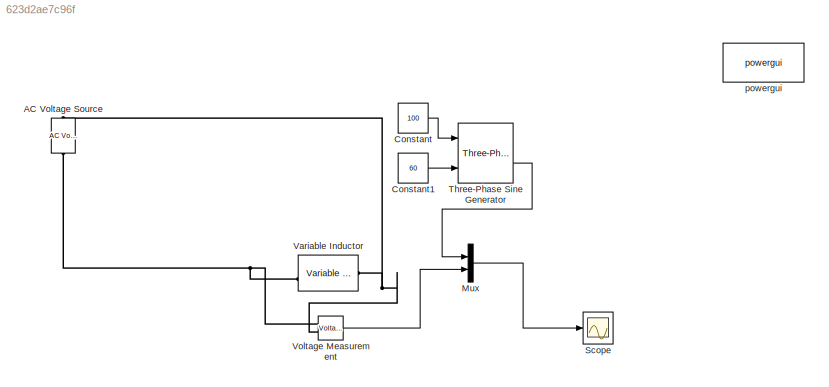
MODEL slx_623d2ae7c96f
KIND model
CONFIG AbsTol = auto
CONFIG EnableMultiTasking = off
CONFIG FixedStep = auto
CONFIG MaxStep = auto
CONFIG MinStep = auto
CONFIG RelTol = 1e-3
CONFIG SampleTimeConstraint = Unconstrained
CONFIG SolverName = VariableStepAuto
CONFIG StartTime = 0.0
CONFIG StopTime = 10.0
BLOCK [Reference] AC Voltage Source  REF=spsACVoltageSourceLib/AC Voltage Source
  Ports = [0, 0, 0, 0, 0, 1, 1]
  SourceBlock = spsACVoltageSourceLib/AC Voltage Source
  SourceProductBaseCode = PS
  SourceType = AC Voltage Source
BLOCK [Constant] Constant
  Value = 100
BLOCK [Constant] Constant1
  Value = 60
BLOCK [Mux] Mux
  DisplayOption = bar
  Inputs = 2
  Ports = [2, 1]
BLOCK [Scope] Scope
  Floating = off
  NumInputPorts = 1
  Ports = [1]
  ScopeSpecificationString = Simulink.scopes.TimeScopeBlockCfg('CurrentConfiguration', extmgr.ConfigurationSet(extmgr.Configuration('Core','General UI',true),extmgr.Configuration('Core','Source UI',true),extmgr.Configuration('Sources','WiredSimulink',true,'DataLoggingSaveFormat','Array','DataLoggingLimitDataPoints',true,'DataLoggingDecimation','1'),extmgr.Configuration('Visuals','Time Domain',true,'DisplayPropertyDefaults',st...<+829ch>
BLOCK [Reference] Three-Phase Sine Generator  REF=spsThreePhaseSineGeneratorLib/Three-Phase
Sine Generator
  Ports = [3, 2]
  SourceBlock = spsThreePhaseSineGeneratorLib/Three-Phase\nSine Generator
  SourceProductBaseCode = PS
  SourceType = Three-phase Sine Generator
BLOCK [Reference] Variable Inductor  REF=spsVariableInductorLib/Variable Inductor
  Ports = [1, 0, 0, 0, 0, 1, 1]
  SourceBlock = spsVariableInductorLib/Variable Inductor
  SourceProductBaseCode = PS
  SourceType = Variable Inductor
BLOCK [Reference] Voltage Measurement  REF=spsVoltageMeasurementLib/Voltage Measurement
  Ports = [0, 1, 0, 0, 0, 2]
  SourceBlock = spsVoltageMeasurementLib/Voltage Measurement
  SourceProductBaseCode = PS
  SourceType = Voltage Measurement
  UserDataPersistent = on
BLOCK [Reference] powergui  REF=spspowerguiLib/powergui
  Ports = []
  Priority = 1
  SourceBlock = spspowerguiLib/powergui
  SourceProductBaseCode = PS
  SourceType = PSB option menu block
LINE Constant1:1 -> Three-Phase Sine Generator:3
LINE Constant:1 -> Three-Phase Sine Generator:1
LINE Mux:1 -> Scope:1
LINE Three-Phase Sine Generator:2 -> Mux:1
LINE Voltage Measurement:1 -> Mux:2
PNET net1: AC Voltage Source:LConn1 -- Variable Inductor:LConn1 -- Voltage Measurement:LConn1
PNET net2: AC Voltage Source:RConn1 -- Variable Inductor:RConn1 -- Voltage Measurement:LConn2
note: PNET lines group multi-terminal physical nets as a canonical sorted terminal list (undirected conserving connections); 2-terminal nets keep the pairwise PLINE form
